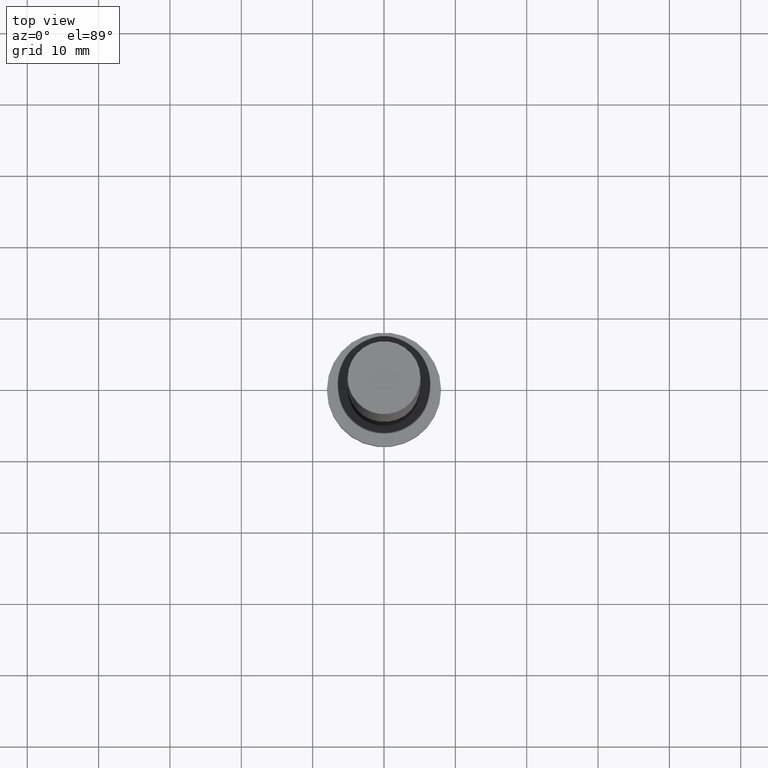
[diagram: clean part render]
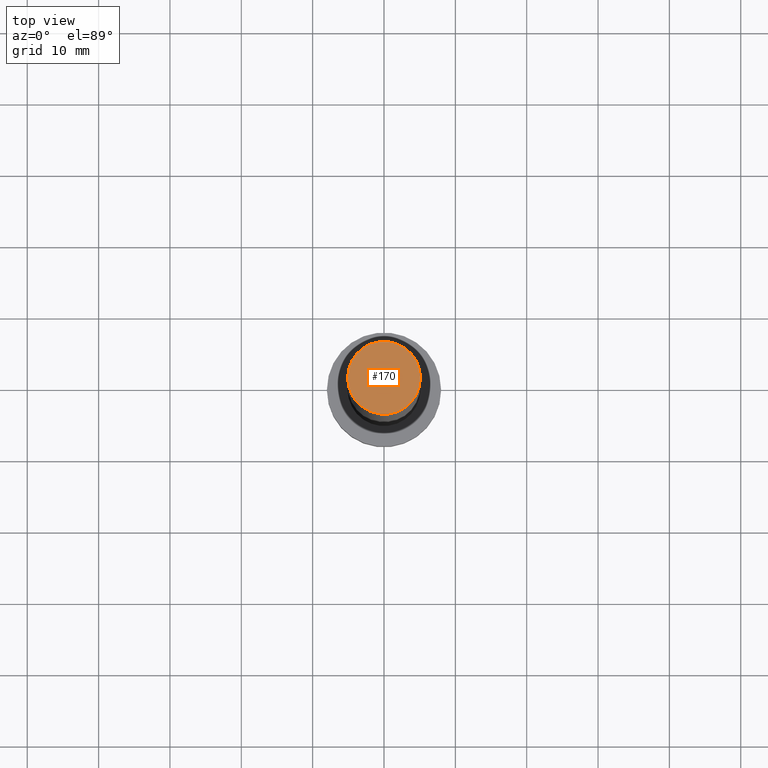
[diagram: same view with one face highlighted and labeled with its STEP entity id]
A machine part, top view. The second image highlights one B-rep face of the part: STEP entity #170.
In plain terms, the highlighted planar face has unit normal (0, 0, 1).
Its self-contained STEP definition (entity closure, byte-faithful):
#31 = DIRECTION ( 'NONE',  ( 0.000000000000000000, 0.000000000000000000, 1.000000000000000000 ) ) ;
#44 = EDGE_CURVE ( 'NONE', #232, #46, #84, .T. ) ;
#46 = VERTEX_POINT ( 'NONE', #180 ) ;
#47 = PLANE ( 'NONE',  #251 ) ;
#50 = DIRECTION ( 'NONE',  ( 1.000000000000000000, 0.000000000000000000, -0.000000000000000000 ) ) ;
#54 = DIRECTION ( 'NONE',  ( 1.000000000000000000, 0.000000000000000000, 0.000000000000000000 ) ) ;
#84 = CIRCLE ( 'NONE', #222, 5.100000000000001421 ) ;
#88 = CIRCLE ( 'NONE', #253, 5.100000000000001421 ) ;
#116 = DIRECTION ( 'NONE',  ( 0.000000000000000000, 0.000000000000000000, 1.000000000000000000 ) ) ;
#131 = CARTESIAN_POINT ( 'NONE',  ( -5.100000000000001421, 0.000000000000000000, 100.0000000000000000 ) ) ;
#135 = EDGE_LOOP ( 'NONE', ( #212, #173 ) ) ;
#163 = DIRECTION ( 'NONE',  ( 1.000000000000000000, 0.000000000000000000, 0.000000000000000000 ) ) ;
#170 = ADVANCED_FACE ( 'NONE', ( #219 ), #47, .T. ) ;
#173 = ORIENTED_EDGE ( 'NONE', *, *, #231, .T. ) ;
#179 = CARTESIAN_POINT ( 'NONE',  ( 0.000000000000000000, 0.000000000000000000, 100.0000000000000000 ) ) ;
#180 = CARTESIAN_POINT ( 'NONE',  ( 5.100000000000001421, 6.245698675651502811E-16, 100.0000000000000000 ) ) ;
#185 = CARTESIAN_POINT ( 'NONE',  ( 0.000000000000000000, 0.000000000000000000, 100.0000000000000000 ) ) ;
#187 = CARTESIAN_POINT ( 'NONE',  ( 0.000000000000000000, 0.000000000000000000, 100.0000000000000000 ) ) ;
#212 = ORIENTED_EDGE ( 'NONE', *, *, #44, .T. ) ;
#219 = FACE_OUTER_BOUND ( 'NONE', #135, .T. ) ;
#221 = DIRECTION ( 'NONE',  ( 0.000000000000000000, 0.000000000000000000, 1.000000000000000000 ) ) ;
#222 = AXIS2_PLACEMENT_3D ( 'NONE', #179, #116, #163 ) ;
#231 = EDGE_CURVE ( 'NONE', #46, #232, #88, .T. ) ;
#232 = VERTEX_POINT ( 'NONE', #131 ) ;
#251 = AXIS2_PLACEMENT_3D ( 'NONE', #185, #221, #50 ) ;
#253 = AXIS2_PLACEMENT_3D ( 'NONE', #187, #31, #54 ) ;